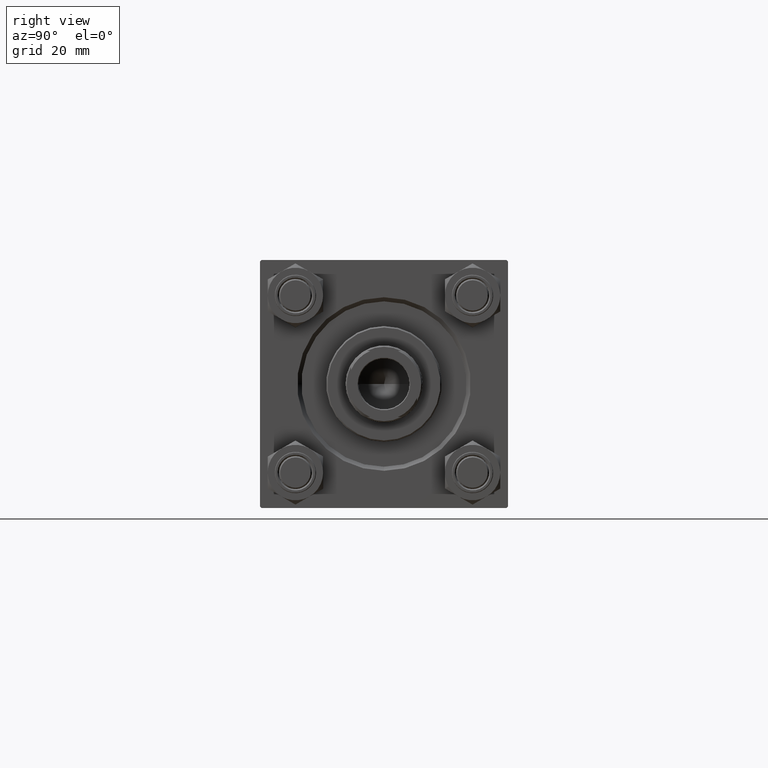
[diagram: clean part render]
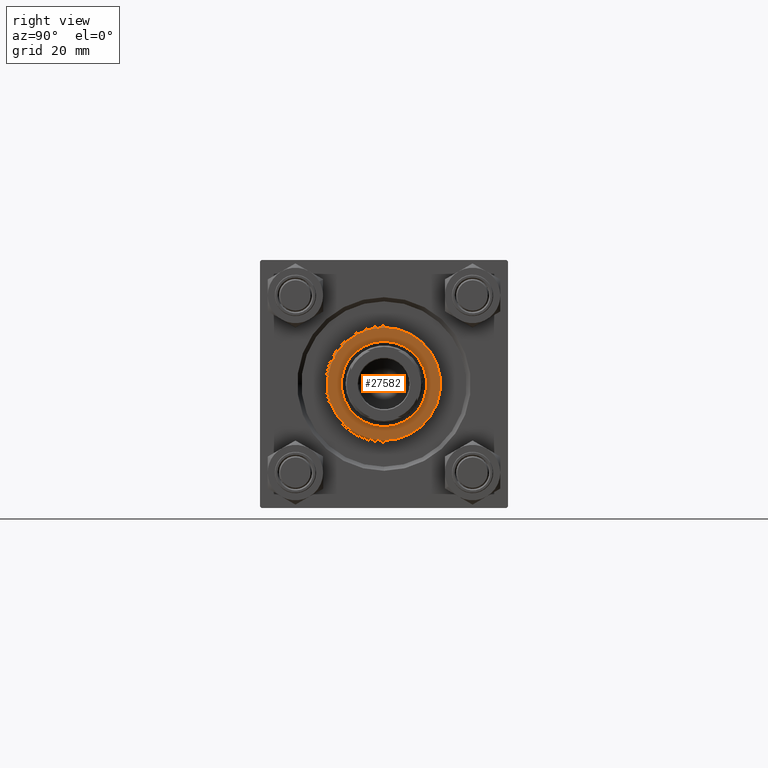
[diagram: same view with one face highlighted and labeled with its STEP entity id]
A machine part, right view. The second image highlights one B-rep face of the part: STEP entity #27582.
In plain terms, the highlighted planar face has unit normal (1, 0, -0).
Its self-contained STEP definition (entity closure, byte-faithful):
#198 = ORIENTED_EDGE ( 'NONE', *, *, #26820, .F. ) ;
#478 = ORIENTED_EDGE ( 'NONE', *, *, #4528, .T. ) ;
#1156 = AXIS2_PLACEMENT_3D ( 'NONE', #22654, #26940, #3509 ) ;
#1347 = VERTEX_POINT ( 'NONE', #28515 ) ;
#1740 = AXIS2_PLACEMENT_3D ( 'NONE', #25739, #10130, #44604 ) ;
#3509 = DIRECTION ( 'NONE',  ( 1.000000000000000000, 0.000000000000000000, 0.000000000000000000 ) ) ;
#4528 = EDGE_CURVE ( 'NONE', #15895, #1347, #41169, .T. ) ;
#5648 = VERTEX_POINT ( 'NONE', #43552 ) ;
#5876 = DIRECTION ( 'NONE',  ( 0.000000000000000000, 0.000000000000000000, 1.000000000000000000 ) ) ;
#7207 = EDGE_LOOP ( 'NONE', ( #19320, #478 ) ) ;
#7756 = EDGE_CURVE ( 'NONE', #27933, #5648, #45292, .T. ) ;
#8080 = FACE_BOUND ( 'NONE', #16681, .T. ) ;
#10130 = DIRECTION ( 'NONE',  ( 0.000000000000000000, 0.000000000000000000, 1.000000000000000000 ) ) ;
#11856 = FACE_OUTER_BOUND ( 'NONE', #7207, .T. ) ;
#14880 = PLANE ( 'NONE',  #32020 ) ;
#15895 = VERTEX_POINT ( 'NONE', #34654 ) ;
#16356 = AXIS2_PLACEMENT_3D ( 'NONE', #20246, #5876, #21236 ) ;
#16681 = EDGE_LOOP ( 'NONE', ( #45119, #198 ) ) ;
#19320 = ORIENTED_EDGE ( 'NONE', *, *, #33092, .T. ) ;
#20246 = CARTESIAN_POINT ( 'NONE',  ( 0.000000000000000000, 0.000000000000000000, 39.69999999999999574 ) ) ;
#21236 = DIRECTION ( 'NONE',  ( 1.000000000000000000, 0.000000000000000000, 0.000000000000000000 ) ) ;
#22654 = CARTESIAN_POINT ( 'NONE',  ( 0.000000000000000000, 0.000000000000000000, 39.69999999999999574 ) ) ;
#22863 = CIRCLE ( 'NONE', #1156, 20.50000000000000355 ) ;
#23305 = DIRECTION ( 'NONE',  ( 0.000000000000000000, 0.000000000000000000, 1.000000000000000000 ) ) ;
#24786 = CIRCLE ( 'NONE', #43237, 15.50000000000000000 ) ;
#25739 = CARTESIAN_POINT ( 'NONE',  ( 0.000000000000000000, 0.000000000000000000, 39.69999999999999574 ) ) ;
#26820 = EDGE_CURVE ( 'NONE', #5648, #27933, #24786, .T. ) ;
#26940 = DIRECTION ( 'NONE',  ( 0.000000000000000000, 0.000000000000000000, 1.000000000000000000 ) ) ;
#27085 = CARTESIAN_POINT ( 'NONE',  ( 0.000000000000000000, 0.000000000000000000, 39.69999999999999574 ) ) ;
#27582 = ADVANCED_FACE ( 'NONE', ( #8080, #11856 ), #14880, .T. ) ;
#27933 = VERTEX_POINT ( 'NONE', #29120 ) ;
#28515 = CARTESIAN_POINT ( 'NONE',  ( -20.50000000000000355, 0.000000000000000000, 39.69999999999999574 ) ) ;
#29120 = CARTESIAN_POINT ( 'NONE',  ( 15.50000000000000000, 0.000000000000000000, 39.69999999999999574 ) ) ;
#32020 = AXIS2_PLACEMENT_3D ( 'NONE', #46324, #33773, #34531 ) ;
#33092 = EDGE_CURVE ( 'NONE', #1347, #15895, #22863, .T. ) ;
#33773 = DIRECTION ( 'NONE',  ( 0.000000000000000000, 0.000000000000000000, 1.000000000000000000 ) ) ;
#34531 = DIRECTION ( 'NONE',  ( 1.000000000000000000, 0.000000000000000000, -0.000000000000000000 ) ) ;
#34654 = CARTESIAN_POINT ( 'NONE',  ( 20.50000000000000355, 2.541142108230758269E-15, 39.69999999999999574 ) ) ;
#41169 = CIRCLE ( 'NONE', #1740, 20.50000000000000355 ) ;
#41239 = DIRECTION ( 'NONE',  ( 1.000000000000000000, 0.000000000000000000, 0.000000000000000000 ) ) ;
#43237 = AXIS2_PLACEMENT_3D ( 'NONE', #27085, #23305, #41239 ) ;
#43552 = CARTESIAN_POINT ( 'NONE',  ( -15.50000000000000000, 1.898202538678397557E-15, 39.69999999999999574 ) ) ;
#44604 = DIRECTION ( 'NONE',  ( 1.000000000000000000, 0.000000000000000000, 0.000000000000000000 ) ) ;
#45119 = ORIENTED_EDGE ( 'NONE', *, *, #7756, .F. ) ;
#45292 = CIRCLE ( 'NONE', #16356, 15.50000000000000000 ) ;
#46324 = CARTESIAN_POINT ( 'NONE',  ( 0.000000000000000000, 0.000000000000000000, 39.69999999999999574 ) ) ;